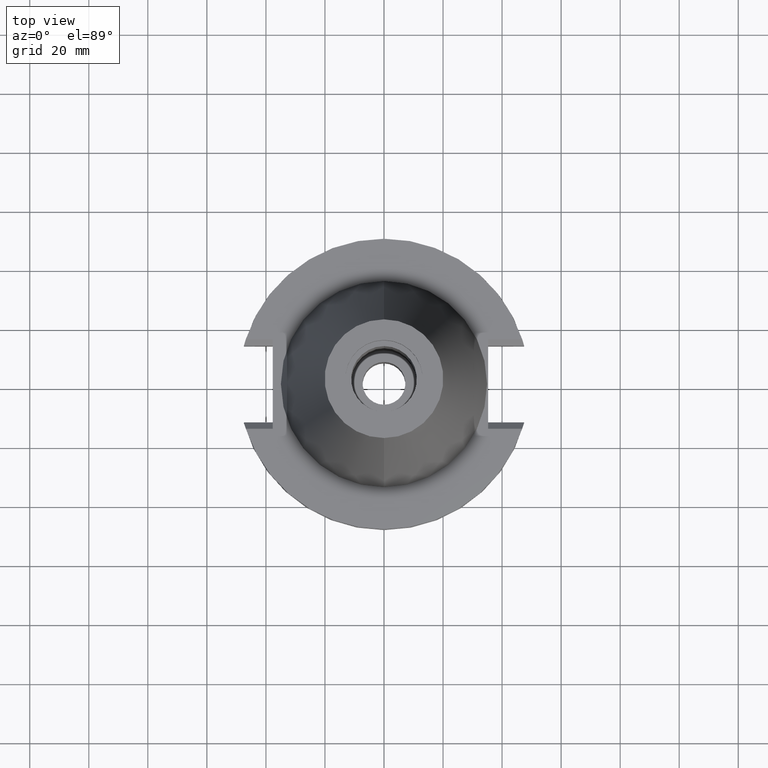
[diagram: clean part render]
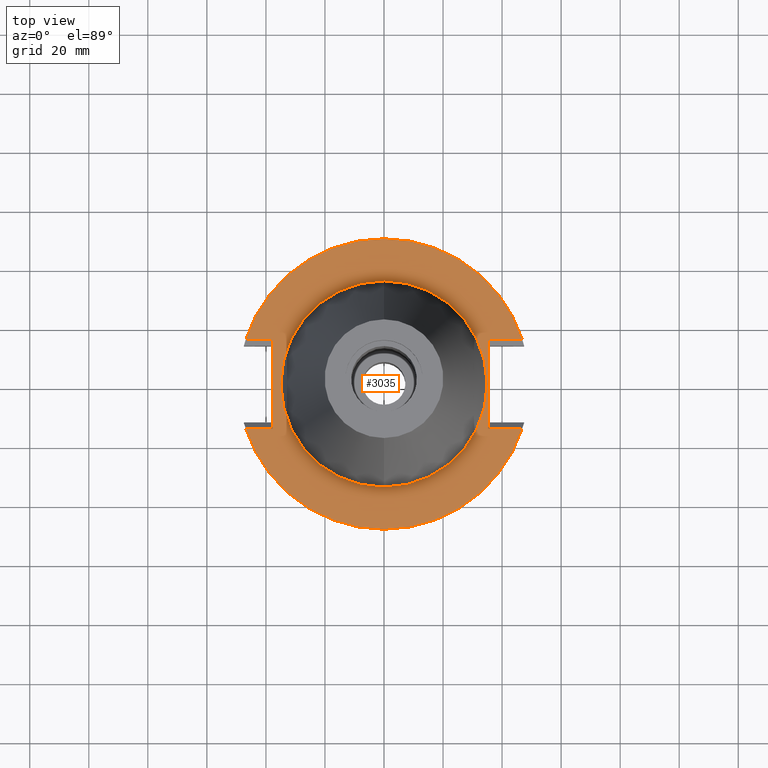
[diagram: same view with one face highlighted and labeled with its STEP entity id]
A machine part, top view. The second image highlights one B-rep face of the part: STEP entity #3035.
In plain terms, the highlighted planar face has unit normal (0, 0, -1).
Its self-contained STEP definition (entity closure, byte-faithful):
#94=DIRECTION('',(0.E0,-1.E0,0.E0));
#95=VECTOR('',#94,3.031E1);
#96=CARTESIAN_POINT('',(3.527E1,1.5155E1,-1.499999999998E0));
#97=LINE('',#96,#95);
#101=DIRECTION('',(1.E0,1.045739518170E-14,0.E0));
#102=VECTOR('',#101,1.155089417397E1);
#103=CARTESIAN_POINT('',(3.527E1,-1.5155E1,-1.499999999997E0));
#104=LINE('',#103,#102);
#108=CARTESIAN_POINT('',(0.E0,2.595393961433E-14,-1.499999999997E0));
#109=DIRECTION('',(0.E0,0.E0,-1.E0));
#110=DIRECTION('',(9.514024724200E-1,-3.079502159004E-1,0.E0));
#111=AXIS2_PLACEMENT_3D('',#108,#109,#110);
#116=CARTESIAN_POINT('',(0.E0,2.595393961433E-14,-1.499999999997E0));
#117=DIRECTION('',(0.E0,0.E0,-1.E0));
#118=DIRECTION('',(0.E0,-1.E0,0.E0));
#119=AXIS2_PLACEMENT_3D('',#116,#117,#118);
#124=DIRECTION('',(0.E0,1.E0,0.E0));
#125=VECTOR('',#124,3.031E1);
#126=CARTESIAN_POINT('',(-3.768E1,-1.5155E1,-1.499999999997E0));
#127=LINE('',#126,#125);
#131=DIRECTION('',(-1.E0,-1.220397122986E-13,0.E0));
#132=VECTOR('',#131,9.140894173969E0);
#133=CARTESIAN_POINT('',(-3.768E1,1.5155E1,-1.499999999997E0));
#134=LINE('',#133,#132);
#138=CARTESIAN_POINT('',(0.E0,2.595393961433E-14,-1.499999999997E0));
#139=DIRECTION('',(0.E0,0.E0,-1.E0));
#140=DIRECTION('',(-9.514024724200E-1,3.079502159004E-1,0.E0));
#141=AXIS2_PLACEMENT_3D('',#138,#139,#140);
#146=CARTESIAN_POINT('',(0.E0,2.595393961433E-14,-1.499999999997E0));
#147=DIRECTION('',(0.E0,0.E0,-1.E0));
#148=DIRECTION('',(0.E0,1.E0,0.E0));
#149=AXIS2_PLACEMENT_3D('',#146,#147,#148);
#154=CARTESIAN_POINT('',(0.E0,2.595393961433E-14,-1.499999999997E0));
#155=DIRECTION('',(0.E0,0.E0,1.E0));
#156=DIRECTION('',(0.E0,-1.E0,0.E0));
#157=AXIS2_PLACEMENT_3D('',#154,#155,#156);
#162=CARTESIAN_POINT('',(0.E0,2.595393961433E-14,-1.499999999997E0));
#163=DIRECTION('',(0.E0,0.E0,1.E0));
#164=DIRECTION('',(0.E0,1.E0,0.E0));
#165=AXIS2_PLACEMENT_3D('',#162,#163,#164);
#281=DIRECTION('',(1.E0,-9.657712020748E-14,0.E0));
#282=VECTOR('',#281,1.155089417397E1);
#283=CARTESIAN_POINT('',(3.527E1,1.5155E1,-1.499999999997E0));
#284=LINE('',#283,#282);
#298=CARTESIAN_POINT('',(4.682089417397E1,1.5155E1,-1.499999999999E0));
#561=DIRECTION('',(-1.E0,1.282582963648E-14,0.E0));
#562=VECTOR('',#561,9.140894173969E0);
#563=CARTESIAN_POINT('',(-3.768E1,-1.5155E1,-1.499999999997E0));
#564=LINE('',#563,#562);
#575=CARTESIAN_POINT('',(4.682089417397E1,-1.5155E1,-1.499999999999E0));
#600=CARTESIAN_POINT('',(-4.682089417397E1,-1.5155E1,-1.499999999999E0));
#2782=CARTESIAN_POINT('',(3.527E1,-1.5155E1,-1.499999999997E0));
#2783=VERTEX_POINT('',#2782);
#2784=CARTESIAN_POINT('',(3.527E1,1.5155E1,-1.499999999998E0));
#2785=VERTEX_POINT('',#2784);
#2825=CARTESIAN_POINT('',(-3.768E1,1.5155E1,-1.499999999998E0));
#2826=VERTEX_POINT('',#2825);
#2827=CARTESIAN_POINT('',(-3.768E1,-1.5155E1,-1.499999999997E0));
#2828=VERTEX_POINT('',#2827);
#2871=VERTEX_POINT('',#575);
#2872=VERTEX_POINT('',#600);
#2873=CARTESIAN_POINT('',(0.E0,-4.92125E1,-1.499999999997E0));
#2874=VERTEX_POINT('',#2873);
#2877=VERTEX_POINT('',#298);
#2878=CARTESIAN_POINT('',(0.E0,4.92125E1,-1.499999999997E0));
#2879=VERTEX_POINT('',#2878);
#2880=CARTESIAN_POINT('',(-4.682089417397E1,1.5155E1,-1.499999999997E0));
#2881=VERTEX_POINT('',#2880);
#2882=CARTESIAN_POINT('',(0.E0,-3.4925E1,-1.499999999997E0));
#2883=CARTESIAN_POINT('',(0.E0,3.4925E1,-1.499999999997E0));
#2884=VERTEX_POINT('',#2882);
#2885=VERTEX_POINT('',#2883);
#3004=CARTESIAN_POINT('',(0.E0,1.206277097160E-14,-1.499999999997E0));
#3005=DIRECTION('',(0.E0,0.E0,-1.E0));
#3006=DIRECTION('',(0.E0,-1.E0,0.E0));
#3007=AXIS2_PLACEMENT_3D('',#3004,#3005,#3006);
#3008=PLANE('',#3007);
#3010=ORIENTED_EDGE('',*,*,#3009,.T.);
#3012=ORIENTED_EDGE('',*,*,#3011,.T.);
#3014=ORIENTED_EDGE('',*,*,#3013,.T.);
#3016=ORIENTED_EDGE('',*,*,#3015,.T.);
#3018=ORIENTED_EDGE('',*,*,#3017,.F.);
#3020=ORIENTED_EDGE('',*,*,#3019,.T.);
#3022=ORIENTED_EDGE('',*,*,#3021,.T.);
#3024=ORIENTED_EDGE('',*,*,#3023,.T.);
#3026=ORIENTED_EDGE('',*,*,#3025,.T.);
#3028=ORIENTED_EDGE('',*,*,#3027,.F.);
#3029=EDGE_LOOP('',(#3010,#3012,#3014,#3016,#3018,#3020,#3022,#3024,#3026,
#3028));
#3030=FACE_OUTER_BOUND('',#3029,.F.);
#3031=ORIENTED_EDGE('',*,*,#2983,.T.);
#3032=ORIENTED_EDGE('',*,*,#2999,.T.);
#3033=EDGE_LOOP('',(#3031,#3032));
#3034=FACE_BOUND('',#3033,.F.);
#112=CIRCLE('',#111,4.92125E1);
#120=CIRCLE('',#119,4.92125E1);
#142=CIRCLE('',#141,4.92125E1);
#150=CIRCLE('',#149,4.92125E1);
#158=CIRCLE('',#157,3.4925E1);
#166=CIRCLE('',#165,3.4925E1);
#2983=EDGE_CURVE('',#2884,#2885,#158,.T.);
#2999=EDGE_CURVE('',#2885,#2884,#166,.T.);
#3009=EDGE_CURVE('',#2785,#2783,#97,.T.);
#3011=EDGE_CURVE('',#2783,#2871,#104,.T.);
#3013=EDGE_CURVE('',#2871,#2874,#112,.T.);
#3015=EDGE_CURVE('',#2874,#2872,#120,.T.);
#3017=EDGE_CURVE('',#2828,#2872,#564,.T.);
#3019=EDGE_CURVE('',#2828,#2826,#127,.T.);
#3021=EDGE_CURVE('',#2826,#2881,#134,.T.);
#3023=EDGE_CURVE('',#2881,#2879,#142,.T.);
#3025=EDGE_CURVE('',#2879,#2877,#150,.T.);
#3027=EDGE_CURVE('',#2785,#2877,#284,.T.);
#3035=ADVANCED_FACE('',(#3030,#3034),#3008,.F.);